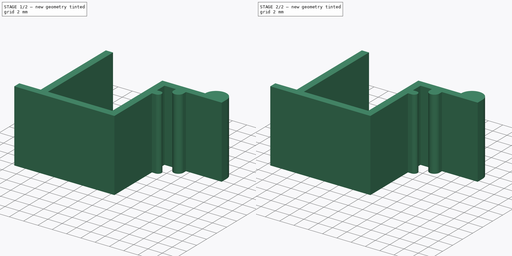
[diagram: build sequence overview — one tinted view per stage of 2, left to right]
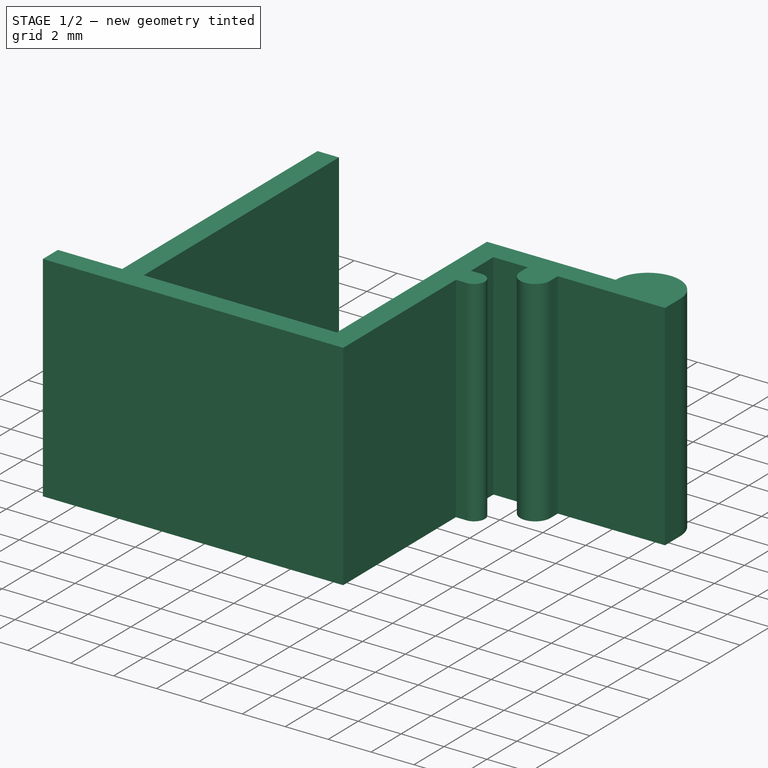
[diagram: stage 1 of 2 — iso view after this stage's code; geometry added in this stage tinted green]
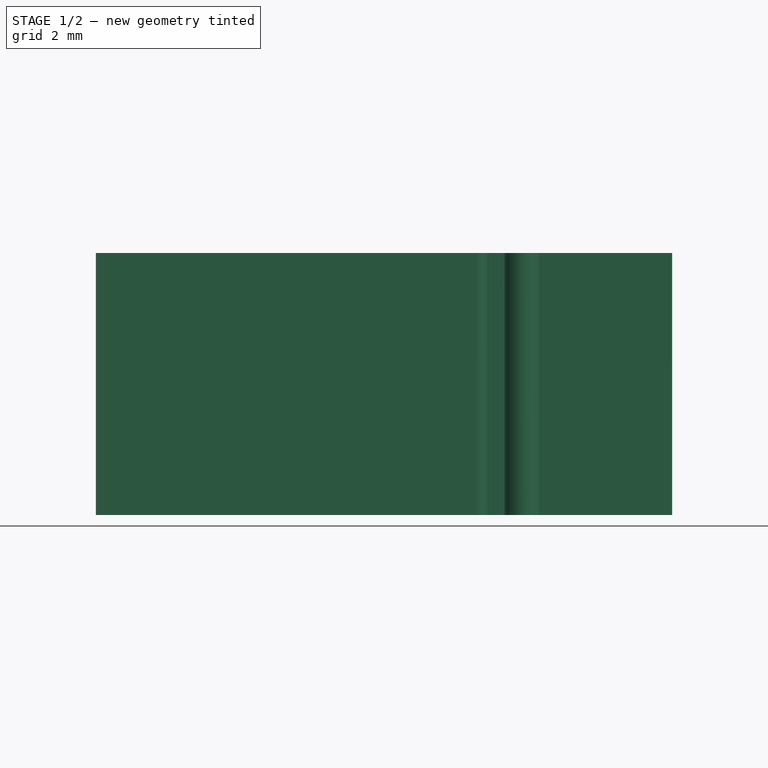
[diagram: stage 1 of 2 — front view after this stage's code; geometry added in this stage tinted green]
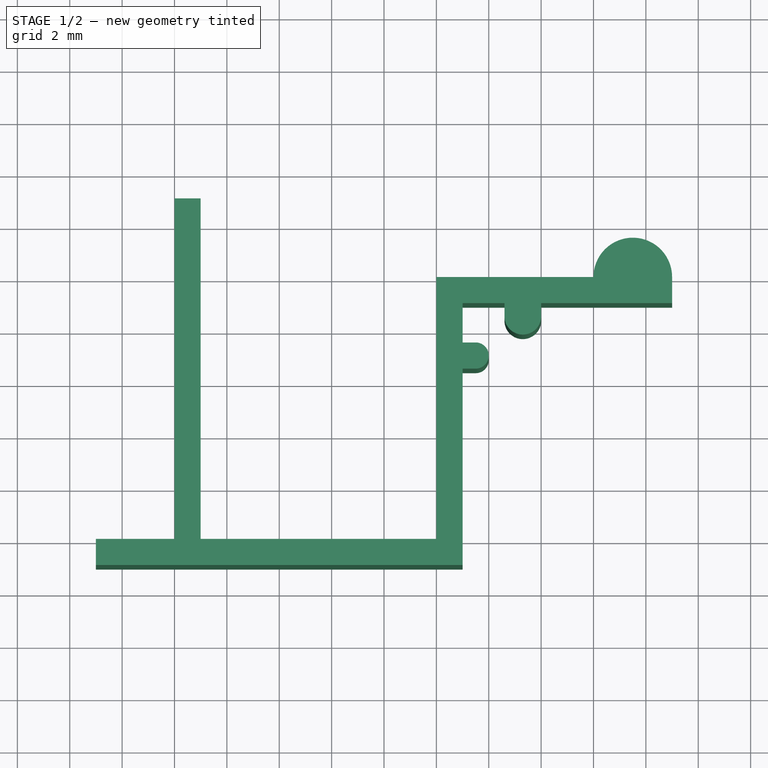
[diagram: stage 1 of 2 — top view after this stage's code; geometry added in this stage tinted green]
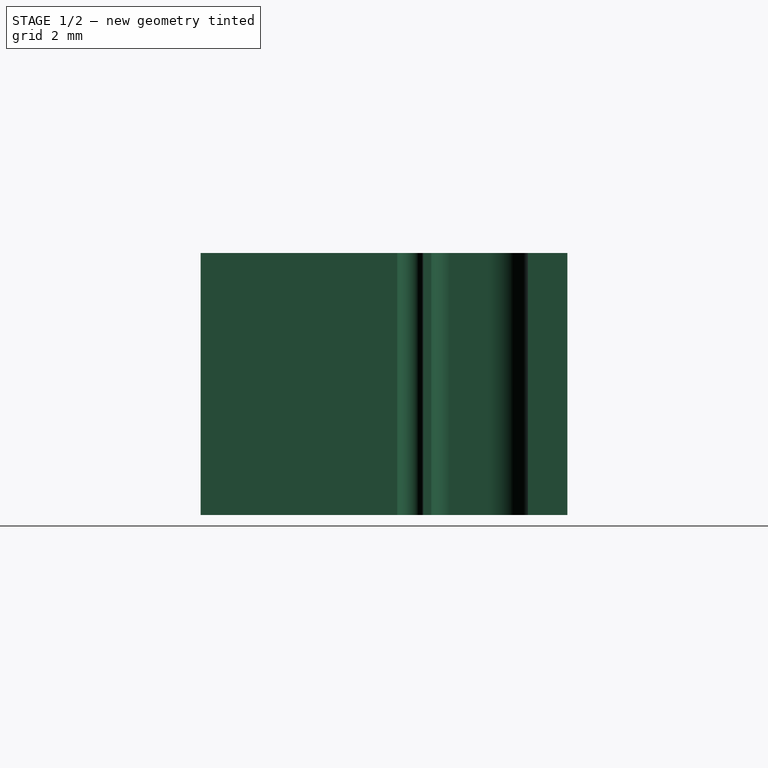
[diagram: stage 1 of 2 — right view after this stage's code; geometry added in this stage tinted green]
FCSTD DOCUMENT  (FreeCAD 0.19R23578 (Git))
Label: reel_interrupter_clip_2
License: All rights reserved
LicenseURL: http://en.wikipedia.org/wiki/All_rights_reserved
objects: PartDesign::Pad×2, Sketcher::SketchObject×1, PartDesign::Body×1
note: 6 computed .brp shape members not serialized (recipe doc carries the construction recipe); baked Part::Feature solids carry a one-line shape summary decoded from their .brp

FEATURE [Sketcher::SketchObject] Sketch
  MapMode = 5
  Support = -> [XY_Plane]
  sketch-geometry (21):
    g0: LineSegment StartX=7 StartY=-1 StartZ=0 EndX=-7 EndY=-1 EndZ=0
    g1: LineSegment StartX=-7 StartY=-1 StartZ=0 EndX=-7 EndY=-1e-16 EndZ=0
    g2: LineSegment StartX=-3 StartY=0 StartZ=0 EndX=-3 EndY=13 EndZ=0
    g3: LineSegment StartX=-3 StartY=13 StartZ=0 EndX=-4 EndY=13 EndZ=0
    g4: LineSegment StartX=-4 StartY=13 StartZ=0 EndX=-4 EndY=0 EndZ=0
    g5: LineSegment StartX=15 StartY=10 StartZ=0 EndX=15 EndY=9 EndZ=0
    g6: LineSegment StartX=-3 StartY=0 StartZ=0 EndX=6 EndY=0 EndZ=0
    g7: LineSegment StartX=7 StartY=9 StartZ=0 EndX=7 EndY=7.5 EndZ=0
    g8: LineSegment StartX=12 StartY=10 StartZ=0 EndX=6 EndY=10 EndZ=0
    g9: LineSegment StartX=6 StartY=0 StartZ=0 EndX=6 EndY=10 EndZ=0
    g10: LineSegment StartX=7 StartY=6.5 StartZ=0 EndX=7 EndY=-1 EndZ=0
    g11: LineSegment StartX=-7 StartY=-1e-16 StartZ=0 EndX=-4 EndY=-1e-16 EndZ=0
    g12: ArcOfCircle CenterX=13.5 CenterY=10 CenterZ=0 NormalX=0 NormalY=0 NormalZ=1 AngleXU=0 Radius=1.5 StartAngle=1.5e-15 EndAngle=3.14159
    g13: LineSegment StartX=15 StartY=9 StartZ=0 EndX=10 EndY=9 EndZ=0
    g14: LineSegment StartX=7 StartY=9 StartZ=0 EndX=8.6 EndY=9 EndZ=0
    g15: ArcOfCircle CenterX=9.3 CenterY=8.5 CenterZ=0 NormalX=0 NormalY=0 NormalZ=1 AngleXU=0 Radius=0.7 StartAngle=3.14159 EndAngle=6.28319
    g16: LineSegment StartX=8.6 StartY=9 StartZ=0 EndX=8.6 EndY=8.5 EndZ=0
    g17: LineSegment StartX=10 StartY=9 StartZ=0 EndX=10 EndY=8.5 EndZ=0
    g18: ArcOfCircle CenterX=7.5 CenterY=7 CenterZ=0 NormalX=0 NormalY=0 NormalZ=1 AngleXU=0 Radius=0.5 StartAngle=4.71239 EndAngle=7.85398
    g19: LineSegment StartX=7 StartY=6.5 StartZ=0 EndX=7.5 EndY=6.5 EndZ=0
    g20: LineSegment StartX=7 StartY=7.5 StartZ=0 EndX=7.5 EndY=7.5 EndZ=0
  constraints (63):
    c: Coincident(g0,g1)
    c: Horizontal(g0)
    c: Vertical(g1)
    c: DistanceY(g1,g1) = 1
    c: Coincident(g2,g3)
    c: Coincident(g3,g4)
    c: Horizontal(g3)
    c: Vertical(g2)
    c: Vertical(g4)
    c: DistanceY(g2,g2) = 13
    c: DistanceX(g3,g3) = 1
    c: DistanceX(g1,g4) = 3
    c: DistanceX(g0,g0) = 14
    c: Vertical(g5)
    c: DistanceX(g7,g7) = 0
    c: DistanceY(g7,g7) = 1.5
    c: DistanceX(g0,g-1) = 7
    c: Coincident(g6,g2)
    c: Horizontal(g6)
    c: Horizontal(g8)
    c: DistanceX(g8,g8) = 6
    c: Coincident(g9,g6)
    c: Coincident(g9,g8)
    c: Vertical(g9)
    c: DistanceX(g8,g7) = 1
    c: DistanceY(g5,g5) = 1
    c: DistanceY(g6,g8) = 10
    c: Coincident(g10,g0)
    c: Vertical(g10)
    c: DistanceY(g0,g10) = 7.5
    c: Equal(g4,g2)
    c: DistanceY(g7,g8) = 1
    c: Coincident(g11,g1)
    c: Coincident(g11,g4)
    c: PointOnObject(g-1,g6)
    c: Coincident(g12,g8)
    c: Coincident(g12,g5)
    c: DistanceY(g12,g8) = 0
    c: Coincident(g13,g5)
    c: Horizontal(g13)
    c: DistanceX(g8,g5) = 3
    c: DistanceX(g13,g13) = 5
    c: Horizontal(g11)
    c: Coincident(g14,g7)
    c: Horizontal(g14)
    c: PointOnObject(g14,g13)
    c: Coincident(g13,g17)
    c: Coincident(g14,g16)
    c: Tangent(g16,g15)
    c: Tangent(g17,g15)
    c: Vertical(g16)
    c: Equal(g16,g17)
    c: Distance(g15,g13) = 0.5
    c: Coincident(g7,g20)
    c: Coincident(g10,g19)
    c: Tangent(g19,g18)
    c: Tangent(g20,g18)
    c: Horizontal(g19)
    c: Equal(g20,g19)
    c: Distance(g19) = 0.5
    c: DistanceX(g14,g14) = 1.6
    c: Horizontal(g20)
    c: Equal(g20,g20)
FEATURE [PartDesign::Pad] Pad
  Direction = (1,1,1)
  Length = 10
  Length2 = 100
  Profile = -> Sketch
  Type = 0
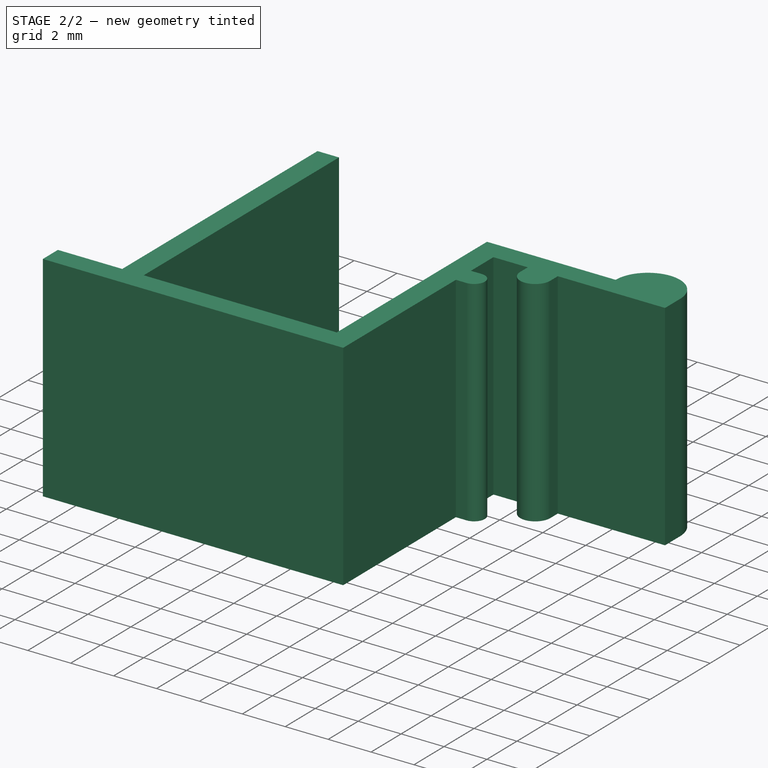
[diagram: stage 2 of 2 — iso view after this stage's code; geometry added in this stage tinted green]
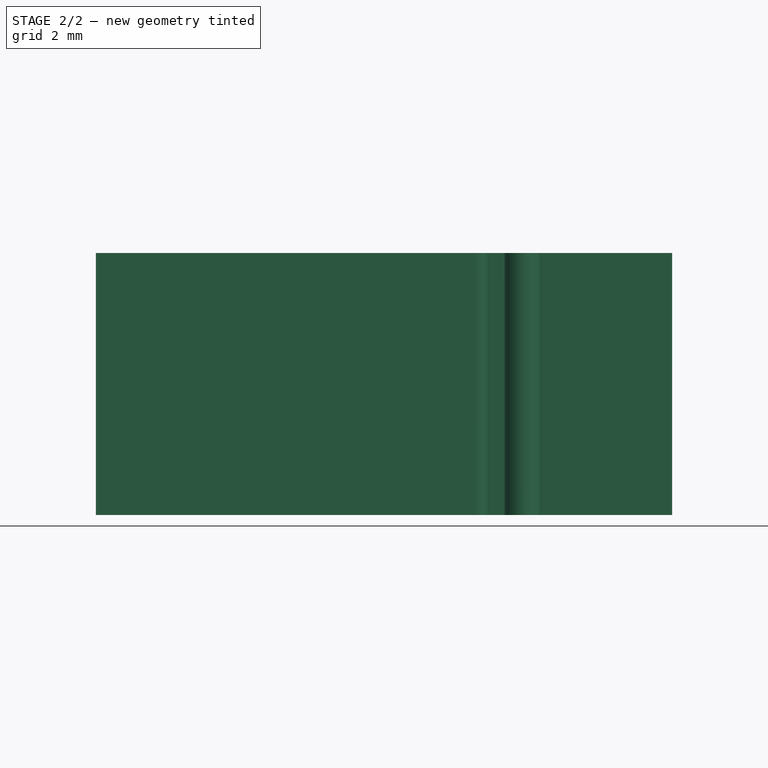
[diagram: stage 2 of 2 — front view after this stage's code; geometry added in this stage tinted green]
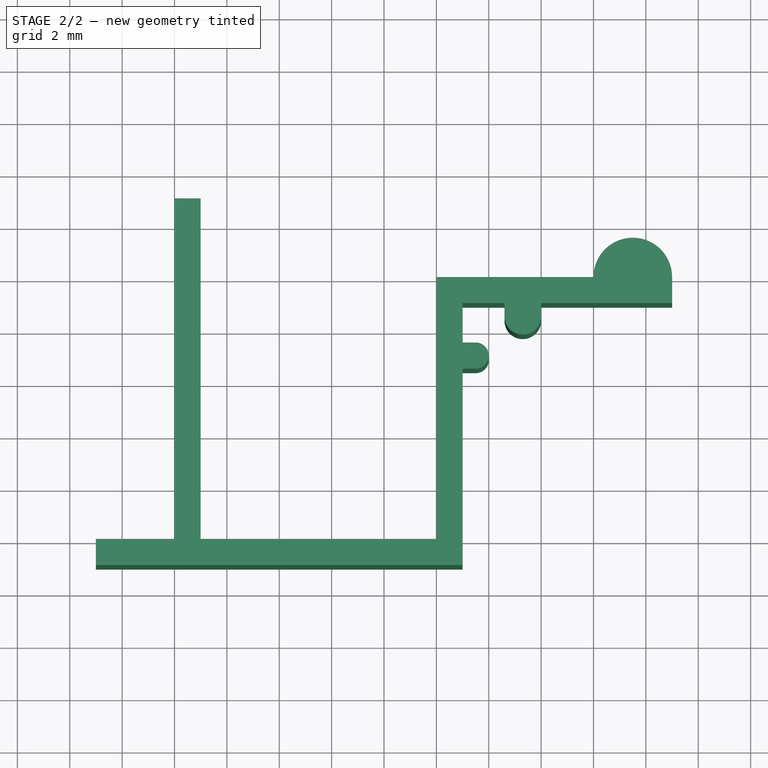
[diagram: stage 2 of 2 — top view after this stage's code; geometry added in this stage tinted green]
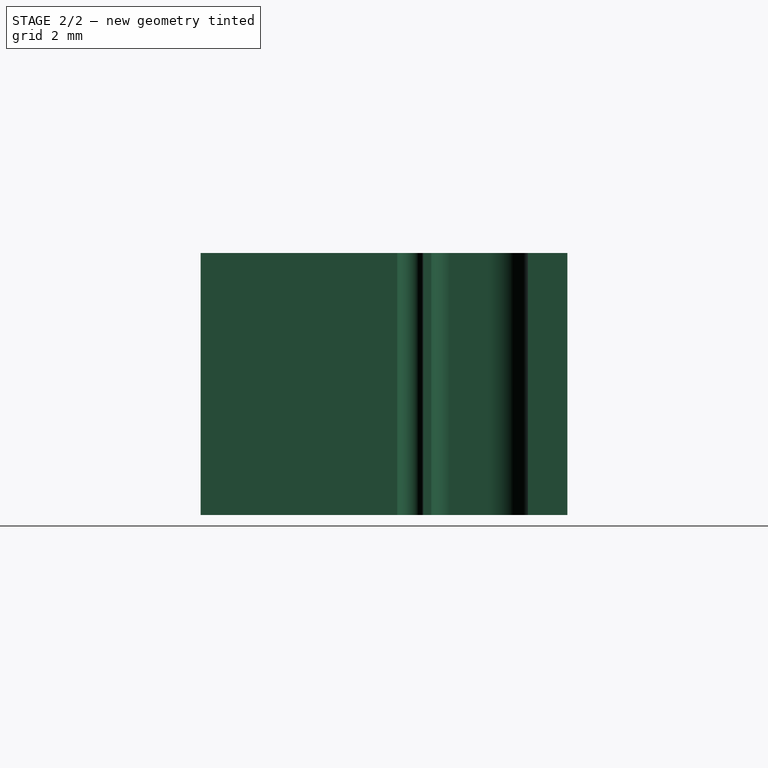
[diagram: stage 2 of 2 — right view after this stage's code; geometry added in this stage tinted green]
FEATURE [PartDesign::Pad] Pad001
  BaseFeature = -> Pad
  Direction = (1,1,1)
  Length = 10
  Length2 = 100
  Profile = -> Sketch
  Type = 0
FEATURE [PartDesign::Body] Body
  Group = -> [Sketch,Pad,Pad001]
  Origin = -> Origin
  Tip = -> Pad001
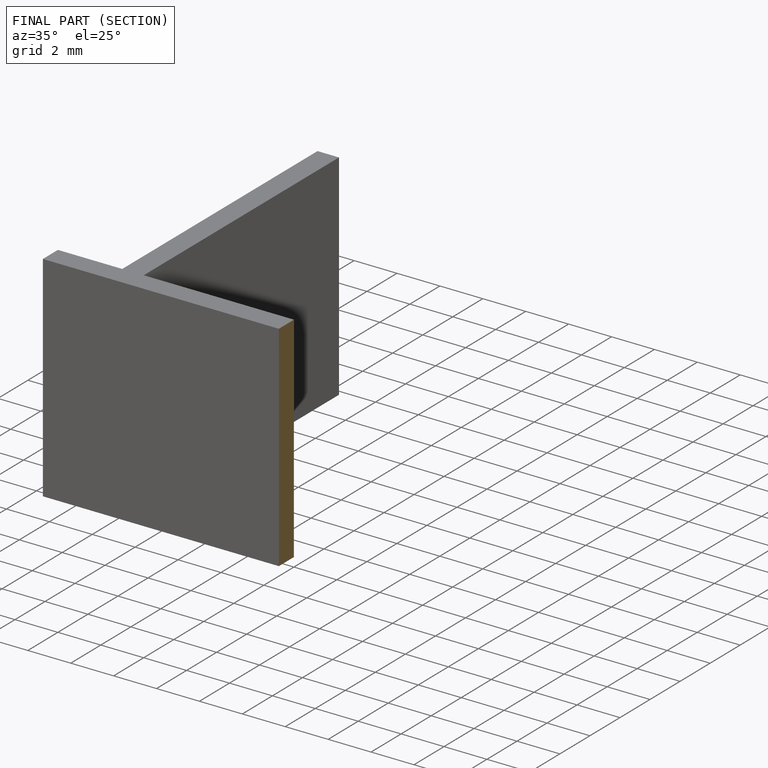
[diagram: finished part — half-section view (interior)]
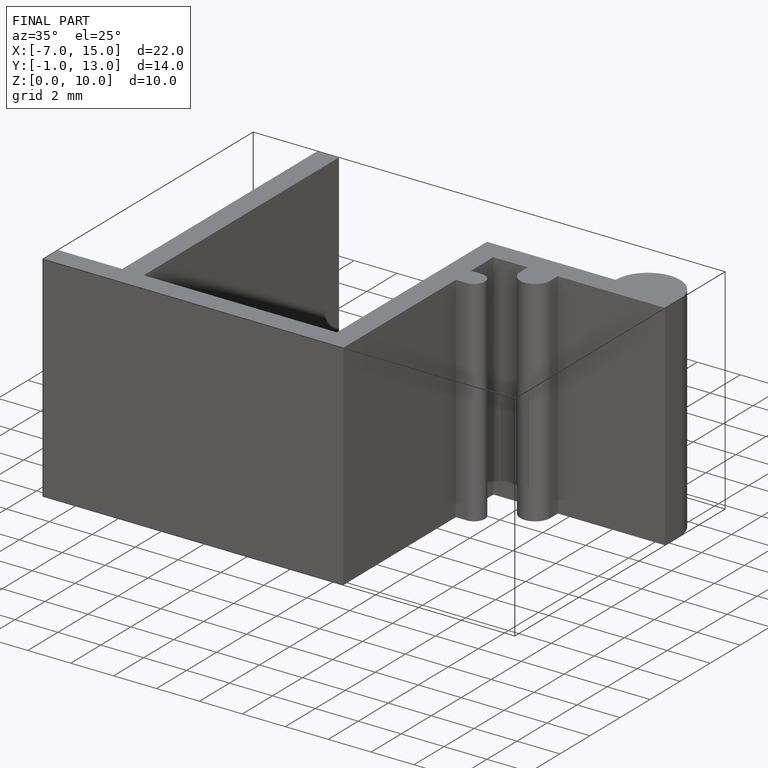
[diagram: finished part — iso view with bounding-box wireframe]
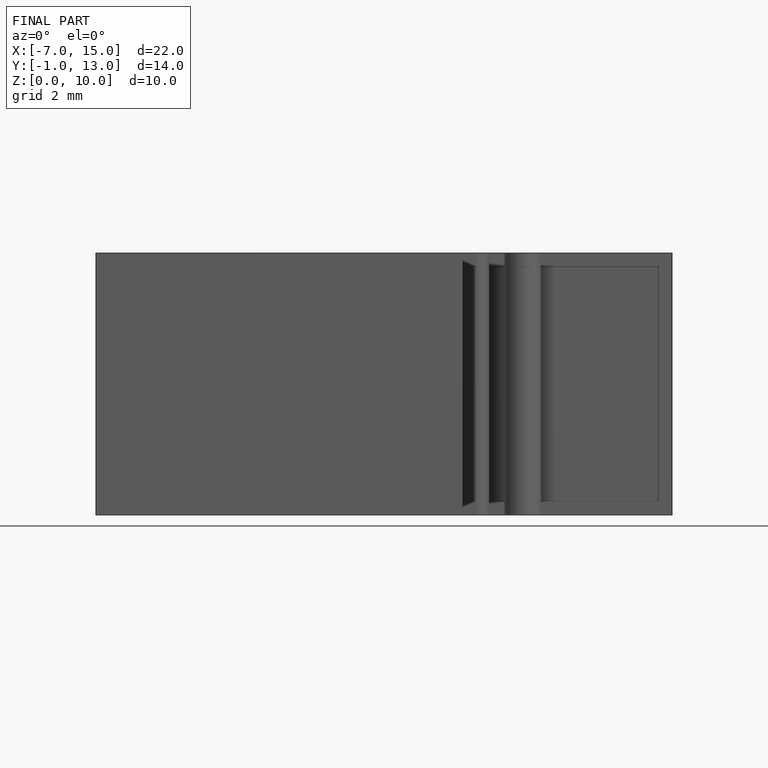
[diagram: finished part — front view with bounding-box wireframe]
